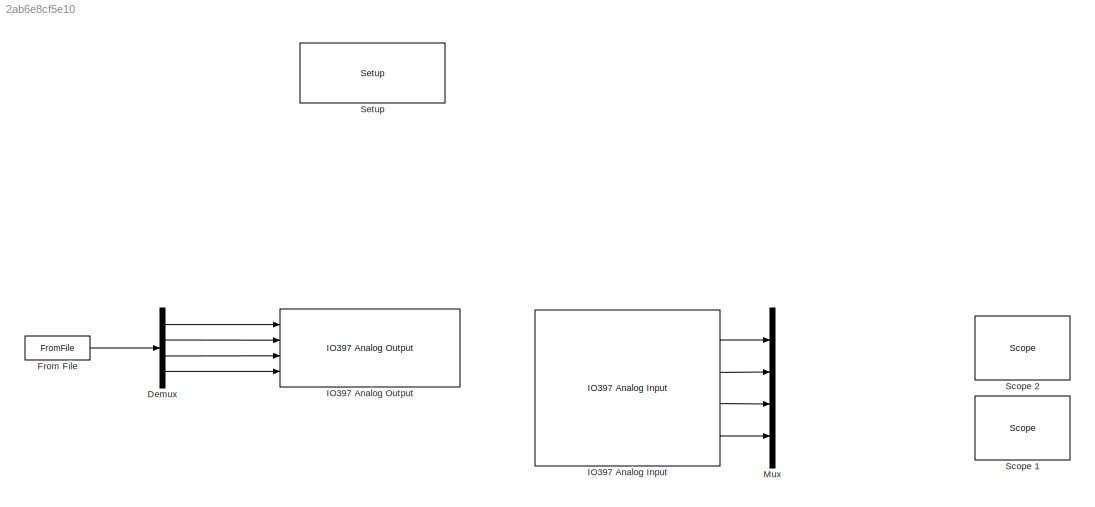
MODEL slx_2ab6e8cf5e10
KIND model
CONFIG AbsTol = auto
CONFIG EnableMultiTasking = on
CONFIG FixedStep = auto
CONFIG MaxStep = auto
CONFIG MinStep = auto
CONFIG RelTol = 1e-3
CONFIG SampleTimeConstraint = Unconstrained
CONFIG Solver = FixedStepDiscrete
CONFIG SolverName = FixedStepDiscrete
CONFIG StartTime = 0.0
CONFIG StopTime = 21
BLOCK [Demux] Demux
  DisplayOption = bar
  Ports = [1, 4]
BLOCK [FromFile] From File
  FileName = simulinkData.mat
  SampleTime = 1/sF
BLOCK [Reference] IO397 Analog Input  REF=speedgoatlib_fpga_analog_io/IO397 Analog Input
  Commented = on
  Ports = [0, 4]
  SourceBlock = speedgoatlib_fpga_analog_io/IO397 Analog Input
  SourceProductName = Simulink Real-Time: Speedgoat I/O Driver Library
  SourceType = ad_IO397
BLOCK [Reference] IO397 Analog Output  REF=speedgoatlib_fpga_analog_io/IO397 Analog Output
  Ports = [4]
  SourceBlock = speedgoatlib_fpga_analog_io/IO397 Analog Output
  SourceProductName = Simulink Real-Time: Speedgoat Library
  SourceType = da_IO397
BLOCK [Mux] Mux
  Commented = on
  DisplayOption = bar
  Ports = [4, 1]
BLOCK [Reference] Scope 1  REF=slrtlib/Displays and
Logging/Scope 
  Commented = on
  Ports = [1]
  SourceBlock = slrtlib/Displays and\nLogging/Scope
  SourceProductBaseCode = XP
  SourceProductName = Simulink Real-Time
  SourceType = xpcscopeblock
BLOCK [Reference] Scope 2  REF=slrtlib/Displays and
Logging/Scope 
  Commented = on
  Ports = [1]
  SourceBlock = slrtlib/Displays and\nLogging/Scope
  SourceProductBaseCode = XP
  SourceProductName = Simulink Real-Time
  SourceType = xpcscopeblock
BLOCK [Reference] Setup  REF=speedgoatlib_fpga/Setup/Setup
  Ports = []
  SourceBlock = speedgoatlib_fpga/Setup/Setup
  SourceProductName = Simulink Real-Time: Speedgoat Library
  SourceType = setup_fpga_3
LINE Demux:1 -> IO397 Analog Output:1
LINE Demux:2 -> IO397 Analog Output:2
LINE Demux:3 -> IO397 Analog Output:3
LINE Demux:4 -> IO397 Analog Output:4
LINE From File:1 -> Demux:1
LINE IO397 Analog Input:1 -> Mux:1
LINE IO397 Analog Input:2 -> Mux:2
LINE IO397 Analog Input:3 -> Mux:3
LINE IO397 Analog Input:4 -> Mux:4
